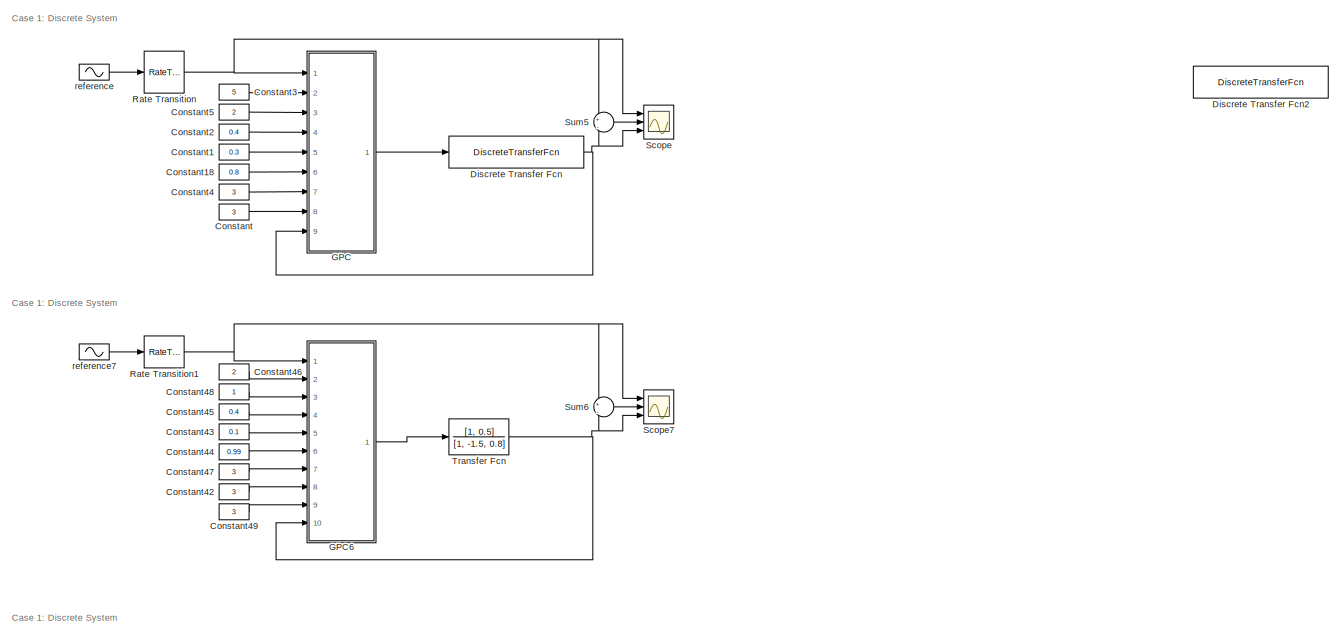
[diagram: root canvas - part 1/2, full width, top band]
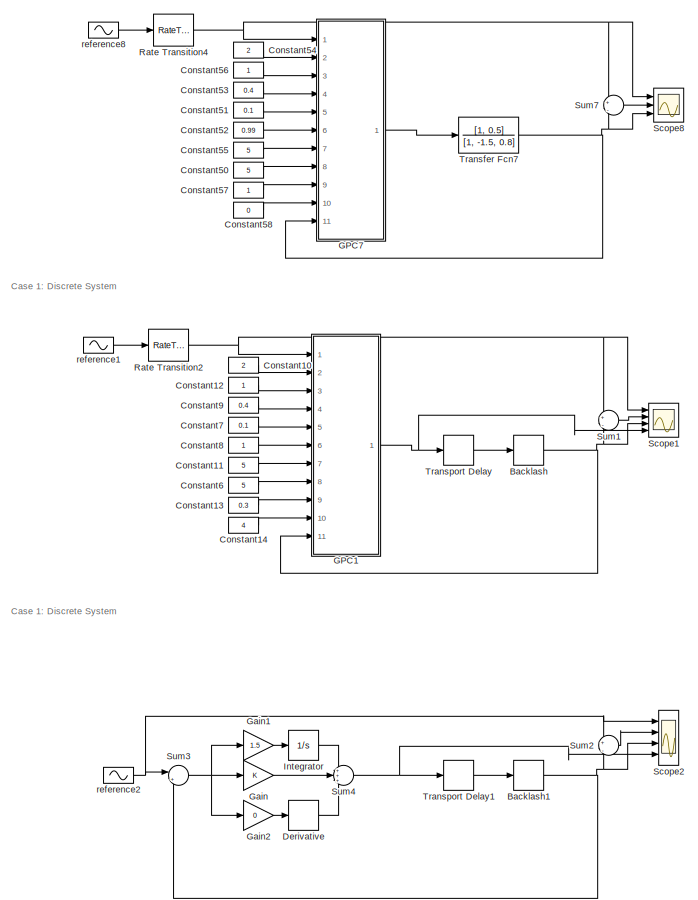
[diagram: root canvas - part 2/2, bottom left region]
MODEL slx_e017679d25f4
KIND model
CONFIG AbsTol = auto
CONFIG FixedStep = 0.2
CONFIG MaxStep = auto
CONFIG MinStep = auto
CONFIG RelTol = 1e-3
CONFIG SampleTimeConstraint = Unconstrained
CONFIG Solver = FixedStepAuto
CONFIG SolverMode = Auto
CONFIG SolverName = FixedStepAuto
CONFIG StartTime = 0.0
CONFIG StopTime = 100
BLOCK [Backlash] Backlash
  BacklashWidth = 1.5
  InputProcessing = Elements as channels (sample based)
BLOCK [Backlash] Backlash1
  InputProcessing = Elements as channels (sample based)
BLOCK [Constant] Constant
  Commented = on
  Value = 3
BLOCK [Constant] Constant1
  Commented = on
  Value = 0.3
BLOCK [Constant] Constant10
  Value = 2
BLOCK [Constant] Constant11
  Value = 5
BLOCK [Constant] Constant12
BLOCK [Constant] Constant13
  Value = 0.3
BLOCK [Constant] Constant14
  Value = 4
BLOCK [Constant] Constant18
  Commented = on
  Value = 0.8
BLOCK [Constant] Constant2
  Commented = on
  Value = 0.4
BLOCK [Constant] Constant3
  Commented = on
  Value = 5
BLOCK [Constant] Constant4
  Commented = on
  Value = 3
BLOCK [Constant] Constant42
  Commented = on
  Value = 3
BLOCK [Constant] Constant43
  Commented = on
  Value = 0.1
BLOCK [Constant] Constant44
  Commented = on
  Value = 0.99
BLOCK [Constant] Constant45
  Commented = on
  Value = 0.4
BLOCK [Constant] Constant46
  Commented = on
  Value = 2
BLOCK [Constant] Constant47
  Commented = on
  Value = 3
BLOCK [Constant] Constant48
  Commented = on
BLOCK [Constant] Constant49
  Commented = on
  Value = 3
BLOCK [Constant] Constant5
  Commented = on
  Value = 2
BLOCK [Constant] Constant50
  Commented = on
  Value = 5
BLOCK [Constant] Constant51
  Commented = on
  Value = 0.1
BLOCK [Constant] Constant52
  Commented = on
  Value = 0.99
BLOCK [Constant] Constant53
  Commented = on
  Value = 0.4
BLOCK [Constant] Constant54
  Commented = on
  Value = 2
BLOCK [Constant] Constant55
  Commented = on
  Value = 5
BLOCK [Constant] Constant56
  Commented = on
BLOCK [Constant] Constant57
  Commented = on
BLOCK [Constant] Constant58
  Commented = on
  Value = 0
BLOCK [Constant] Constant6
  Value = 5
BLOCK [Constant] Constant7
  Value = 0.1
BLOCK [Constant] Constant8
BLOCK [Constant] Constant9
  Value = 0.4
BLOCK [Derivative] Derivative
BLOCK [DiscreteTransferFcn] Discrete Transfer Fcn
  Commented = on
  Denominator = [1, 0.9, -0.2, 0.6, 0.3]
  InputPortMap = u0
  Numerator = [1.3, 1, 0.5]
  Ports = [1, 1]
BLOCK [DiscreteTransferFcn] Discrete Transfer Fcn2
  Denominator = [1, -1.5, 0.6]
  InputPortMap = u0
  Numerator = [1, 0.5]
  Ports = [1, 1]
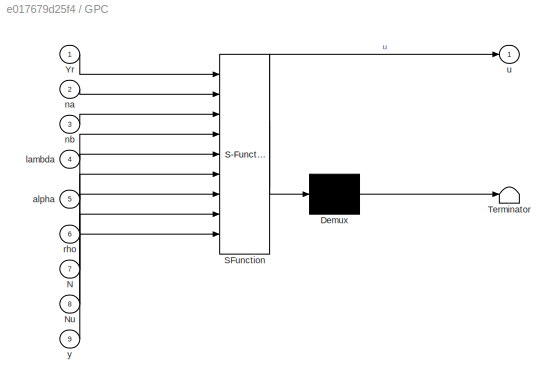
BLOCK [SubSystem] GPC
  Commented = on
  ErrorFcn = Stateflow.Translate.translate
  PermitHierarchicalResolution = ExplicitOnly
  Ports = [9, 1]
  RequestExecContextInheritance = off
  SFBlockType = MATLAB Function
  TreatAsAtomicUnit = on
  Variant = off
BLOCK [Demux] GPC/ Demux 
  Outputs = 1
  Ports = [1, 1]
BLOCK [S-Function] GPC/ SFunction 
  EnableBusSupport = on
  FunctionName = sf_sfun
  PortCounts = [9 2]
  Ports = [9, 2]
  SFunctionDeploymentMode = off
  Tag = Stateflow S-Function GPC_GUI 2
BLOCK [Terminator] GPC/ Terminator 
BLOCK [Inport] GPC/N
  IconDisplay = Port number
  Port = 7
BLOCK [Inport] GPC/Nu
  IconDisplay = Port number
  Port = 8
BLOCK [Inport] GPC/Yr
  IconDisplay = Port number
BLOCK [Inport] GPC/alpha
  IconDisplay = Port number
  Port = 5
BLOCK [Inport] GPC/lambda
  IconDisplay = Port number
  Port = 4
BLOCK [Inport] GPC/na
  IconDisplay = Port number
  Port = 2
BLOCK [Inport] GPC/nb
  IconDisplay = Port number
  Port = 3
BLOCK [Inport] GPC/rho
  IconDisplay = Port number
  Port = 6
BLOCK [Outport] GPC/u
  IconDisplay = Port number
BLOCK [Inport] GPC/y
  IconDisplay = Port number
  Port = 9
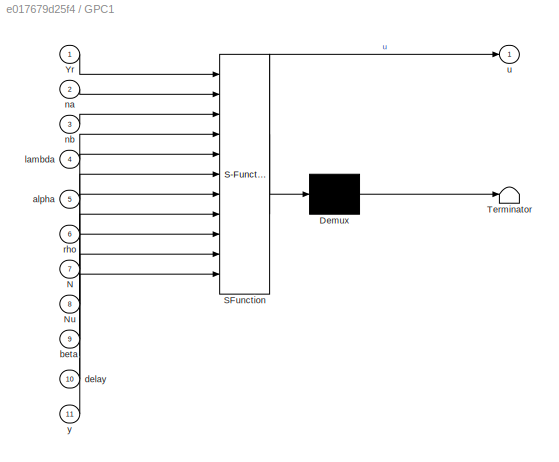
BLOCK [SubSystem] GPC1
  ErrorFcn = Stateflow.Translate.translate
  PermitHierarchicalResolution = ExplicitOnly
  Ports = [11, 1]
  RequestExecContextInheritance = off
  SFBlockType = MATLAB Function
  TreatAsAtomicUnit = on
  Variant = off
BLOCK [Demux] GPC1/ Demux 
  Outputs = 1
  Ports = [1, 1]
BLOCK [S-Function] GPC1/ SFunction 
  EnableBusSupport = on
  FunctionName = sf_sfun
  PortCounts = [11 2]
  Ports = [11, 2]
  SFunctionDeploymentMode = off
  Tag = Stateflow S-Function GPC_GUI 1
BLOCK [Terminator] GPC1/ Terminator 
BLOCK [Inport] GPC1/N
  IconDisplay = Port number
  Port = 7
BLOCK [Inport] GPC1/Nu
  IconDisplay = Port number
  Port = 8
BLOCK [Inport] GPC1/Yr
  IconDisplay = Port number
BLOCK [Inport] GPC1/alpha
  IconDisplay = Port number
  Port = 5
BLOCK [Inport] GPC1/beta
  IconDisplay = Port number
  Port = 9
BLOCK [Inport] GPC1/delay
  IconDisplay = Port number
  Port = 10
BLOCK [Inport] GPC1/lambda
  IconDisplay = Port number
  Port = 4
BLOCK [Inport] GPC1/na
  IconDisplay = Port number
  Port = 2
BLOCK [Inport] GPC1/nb
  IconDisplay = Port number
  Port = 3
BLOCK [Inport] GPC1/rho
  IconDisplay = Port number
  Port = 6
BLOCK [Outport] GPC1/u
  IconDisplay = Port number
BLOCK [Inport] GPC1/y
  IconDisplay = Port number
  Port = 11
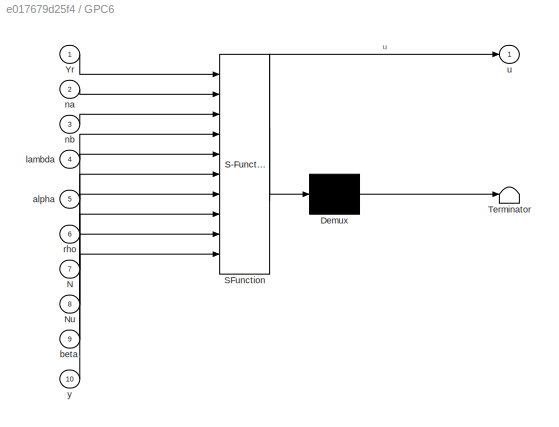
BLOCK [SubSystem] GPC6
  Commented = on
  ErrorFcn = Stateflow.Translate.translate
  PermitHierarchicalResolution = ExplicitOnly
  Ports = [10, 1]
  RequestExecContextInheritance = off
  SFBlockType = MATLAB Function
  TreatAsAtomicUnit = on
  Variant = off
BLOCK [Demux] GPC6/ Demux 
  Outputs = 1
  Ports = [1, 1]
BLOCK [S-Function] GPC6/ SFunction 
  EnableBusSupport = on
  FunctionName = sf_sfun
  PortCounts = [10 2]
  Ports = [10, 2]
  SFunctionDeploymentMode = off
  Tag = Stateflow S-Function GPC_GUI 7
BLOCK [Terminator] GPC6/ Terminator 
BLOCK [Inport] GPC6/N
  IconDisplay = Port number
  Port = 7
BLOCK [Inport] GPC6/Nu
  IconDisplay = Port number
  Port = 8
BLOCK [Inport] GPC6/Yr
  IconDisplay = Port number
BLOCK [Inport] GPC6/alpha
  IconDisplay = Port number
  Port = 5
BLOCK [Inport] GPC6/beta
  IconDisplay = Port number
  Port = 9
BLOCK [Inport] GPC6/lambda
  IconDisplay = Port number
  Port = 4
BLOCK [Inport] GPC6/na
  IconDisplay = Port number
  Port = 2
BLOCK [Inport] GPC6/nb
  IconDisplay = Port number
  Port = 3
BLOCK [Inport] GPC6/rho
  IconDisplay = Port number
  Port = 6
BLOCK [Outport] GPC6/u
  IconDisplay = Port number
BLOCK [Inport] GPC6/y
  IconDisplay = Port number
  Port = 10
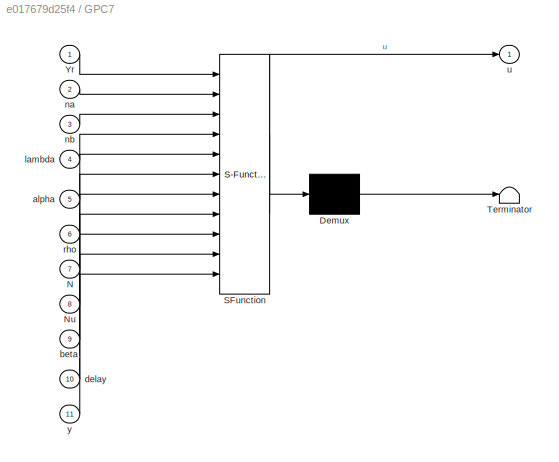
BLOCK [SubSystem] GPC7
  Commented = on
  ErrorFcn = Stateflow.Translate.translate
  PermitHierarchicalResolution = ExplicitOnly
  Ports = [11, 1]
  RequestExecContextInheritance = off
  SFBlockType = MATLAB Function
  TreatAsAtomicUnit = on
  Variant = off
BLOCK [Demux] GPC7/ Demux 
  Outputs = 1
  Ports = [1, 1]
BLOCK [S-Function] GPC7/ SFunction 
  EnableBusSupport = on
  FunctionName = sf_sfun
  PortCounts = [11 2]
  Ports = [11, 2]
  SFunctionDeploymentMode = off
  Tag = Stateflow S-Function GPC_GUI 8
BLOCK [Terminator] GPC7/ Terminator 
BLOCK [Inport] GPC7/N
  IconDisplay = Port number
  Port = 7
BLOCK [Inport] GPC7/Nu
  IconDisplay = Port number
  Port = 8
BLOCK [Inport] GPC7/Yr
  IconDisplay = Port number
BLOCK [Inport] GPC7/alpha
  IconDisplay = Port number
  Port = 5
BLOCK [Inport] GPC7/beta
  IconDisplay = Port number
  Port = 9
BLOCK [Inport] GPC7/delay
  IconDisplay = Port number
  Port = 10
BLOCK [Inport] GPC7/lambda
  IconDisplay = Port number
  Port = 4
BLOCK [Inport] GPC7/na
  IconDisplay = Port number
  Port = 2
BLOCK [Inport] GPC7/nb
  IconDisplay = Port number
  Port = 3
BLOCK [Inport] GPC7/rho
  IconDisplay = Port number
  Port = 6
BLOCK [Outport] GPC7/u
  IconDisplay = Port number
BLOCK [Inport] GPC7/y
  IconDisplay = Port number
  Port = 11
BLOCK [Gain] Gain
  OutDataTypeStr = Inherit: Inherit via internal rule
  ParamDataTypeStr = Inherit: Inherit via internal rule
  SaturateOnIntegerOverflow = off
BLOCK [Gain] Gain1
  Gain = 1.5
  OutDataTypeStr = Inherit: Inherit via internal rule
  ParamDataTypeStr = Inherit: Inherit via internal rule
  SaturateOnIntegerOverflow = off
BLOCK [Gain] Gain2
  Gain = 0
  OutDataTypeStr = Inherit: Inherit via internal rule
  ParamDataTypeStr = Inherit: Inherit via internal rule
  SaturateOnIntegerOverflow = off
BLOCK [Integrator] Integrator
  Ports = [1, 1]
BLOCK [RateTransition] Rate Transition
  Commented = on
BLOCK [RateTransition] Rate Transition1
  Commented = on
BLOCK [RateTransition] Rate Transition2
BLOCK [RateTransition] Rate Transition4
  Commented = on
BLOCK [Scope] Scope
  Commented = on
  NumInputPorts = 3
  Ports = [3]
  ScopeSpecificationString = Simulink.scopes.TimeScopeBlockCfg('CurrentConfiguration', extmgr.ConfigurationSet(extmgr.Configuration('Core','General UI',true),extmgr.Configuration('Core','Source UI',true),extmgr.Configuration('Sources','WiredSimulink',true,'DataLogging',true,'DataLoggingVariableName','dat1','DataLoggingSaveFormat','StructureWithTime'),extmgr.Configuration('Visuals','Time Domain',true,'SerializedDisplays',{stru...<+1535ch>
BLOCK [Scope] Scope1
  NumInputPorts = 4
  Ports = [4]
  ScopeSpecificationString = Simulink.scopes.TimeScopeBlockCfg('CurrentConfiguration', extmgr.ConfigurationSet(extmgr.Configuration('Core','General UI',true),extmgr.Configuration('Core','Source UI',true),extmgr.Configuration('Sources','WiredSimulink',true,'DataLogging',true,'DataLoggingVariableName','dat','DataLoggingSaveFormat','StructureWithTime'),extmgr.Configuration('Visuals','Time Domain',true,'SerializedDisplays',{struc...<+1559ch>
BLOCK [Scope] Scope2
  NumInputPorts = 4
  Ports = [4]
  ScopeSpecificationString = Simulink.scopes.TimeScopeBlockCfg('CurrentConfiguration', extmgr.ConfigurationSet(extmgr.Configuration('Core','General UI',true),extmgr.Configuration('Core','Source UI',true),extmgr.Configuration('Sources','WiredSimulink',true,'DataLogging',true,'DataLoggingVariableName','dat1','DataLoggingSaveFormat','StructureWithTime'),extmgr.Configuration('Visuals','Time Domain',true,'SerializedDisplays',{stru...<+1529ch>
BLOCK [Scope] Scope7
  Commented = on
  NumInputPorts = 3
  Ports = [3]
  ScopeSpecificationString = Simulink.scopes.TimeScopeBlockCfg('CurrentConfiguration', extmgr.ConfigurationSet(extmgr.Configuration('Core','General UI',true),extmgr.Configuration('Core','Source UI',true),extmgr.Configuration('Sources','WiredSimulink',true,'DataLoggingVariableName','ScopeData1','DataLoggingSaveFormat','StructureWithTime'),extmgr.Configuration('Visuals','Time Domain',true,'SerializedDisplays',{struct('MinYLimRe...<+1516ch>
BLOCK [Scope] Scope8
  Commented = on
  NumInputPorts = 3
  Ports = [3]
  ScopeSpecificationString = Simulink.scopes.TimeScopeBlockCfg('CurrentConfiguration', extmgr.ConfigurationSet(extmgr.Configuration('Core','General UI',true),extmgr.Configuration('Core','Source UI',true),extmgr.Configuration('Sources','WiredSimulink',true,'DataLogging',true,'DataLoggingVariableName','ScopeData1','DataLoggingSaveFormat','StructureWithTime'),extmgr.Configuration('Visuals','Time Domain',true,'SerializedDisplays'...<+1540ch>
BLOCK [Sum] Sum1
  IconShape = round
  InputSameDT = off
  Inputs = +|-
  OutDataTypeStr = Inherit: Inherit via internal rule
  Ports = [2, 1]
  SaturateOnIntegerOverflow = off
BLOCK [Sum] Sum2
  IconShape = round
  InputSameDT = off
  Inputs = +|-
  OutDataTypeStr = Inherit: Inherit via internal rule
  Ports = [2, 1]
  SaturateOnIntegerOverflow = off
BLOCK [Sum] Sum3
  IconShape = round
  InputSameDT = off
  Inputs = |+-
  OutDataTypeStr = Inherit: Inherit via internal rule
  Ports = [2, 1]
  SaturateOnIntegerOverflow = off
BLOCK [Sum] Sum4
  IconShape = round
  InputSameDT = off
  Inputs = +++
  OutDataTypeStr = Inherit: Inherit via internal rule
  Ports = [3, 1]
  SaturateOnIntegerOverflow = off
BLOCK [Sum] Sum5
  Commented = on
  IconShape = round
  InputSameDT = off
  Inputs = +|-
  OutDataTypeStr = Inherit: Inherit via internal rule
  Ports = [2, 1]
  SaturateOnIntegerOverflow = off
BLOCK [Sum] Sum6
  Commented = on
  IconShape = round
  InputSameDT = off
  Inputs = +|-
  OutDataTypeStr = Inherit: Inherit via internal rule
  Ports = [2, 1]
  SaturateOnIntegerOverflow = off
BLOCK [Sum] Sum7
  Commented = on
  IconShape = round
  InputSameDT = off
  Inputs = +|-
  OutDataTypeStr = Inherit: Inherit via internal rule
  Ports = [2, 1]
  SaturateOnIntegerOverflow = off
BLOCK [TransferFcn] Transfer Fcn
  Commented = on
  Denominator = [1, -1.5, 0.8]
  Numerator = [1, 0.5]
BLOCK [TransferFcn] Transfer Fcn7
  Commented = on
  Denominator = [1, -1.5, 0.8]
  Numerator = [1, 0.5]
BLOCK [TransportDelay] Transport Delay
  DelayTime = 0.6
  Ports = [1, 1]
BLOCK [TransportDelay] Transport Delay1
  DelayTime = 0.6
  Ports = [1, 1]
BLOCK [Sin] reference
  Commented = on
  Frequency = 0.2
  Phase = pi/4
  Ports = [0, 1]
  SampleTime = 0
BLOCK [Sin] reference1
  Amplitude = 10
  Frequency = 0.5
  Phase = pi/4
  Ports = [0, 1]
  SampleTime = 0
BLOCK [Sin] reference2
  Amplitude = 10
  Frequency = 0.5
  Phase = pi/4
  Ports = [0, 1]
  SampleTime = 0
BLOCK [Sin] reference7
  Amplitude = 10
  Commented = on
  Frequency = 0.5
  Phase = pi/4
  Ports = [0, 1]
  SampleTime = 0
BLOCK [Sin] reference8
  Amplitude = 10
  Commented = on
  Frequency = 0.5
  Phase = pi/4
  Ports = [0, 1]
  SampleTime = 0
ANNOTATION (root): Case 1: Discrete System
NET Backlash1:1 -> Scope2:3, Sum2:2, Sum3:2
NET Backlash:1 -> GPC1:11, Scope1:3, Sum1:2
LINE Constant10:1 -> GPC1:2
LINE Constant11:1 -> GPC1:7
LINE Constant12:1 -> GPC1:3
LINE Constant13:1 -> GPC1:9
LINE Constant14:1 -> GPC1:10
LINE Constant18:1 -> GPC:6
LINE Constant1:1 -> GPC:5
LINE Constant2:1 -> GPC:4
LINE Constant3:1 -> GPC:2
LINE Constant42:1 -> GPC6:8
LINE Constant43:1 -> GPC6:5
LINE Constant44:1 -> GPC6:6
LINE Constant45:1 -> GPC6:4
LINE Constant46:1 -> GPC6:2
LINE Constant47:1 -> GPC6:7
LINE Constant48:1 -> GPC6:3
LINE Constant49:1 -> GPC6:9
LINE Constant4:1 -> GPC:7
LINE Constant50:1 -> GPC7:8
LINE Constant51:1 -> GPC7:5
LINE Constant52:1 -> GPC7:6
LINE Constant53:1 -> GPC7:4
LINE Constant54:1 -> GPC7:2
LINE Constant55:1 -> GPC7:7
LINE Constant56:1 -> GPC7:3
LINE Constant57:1 -> GPC7:9
LINE Constant58:1 -> GPC7:10
LINE Constant5:1 -> GPC:3
LINE Constant6:1 -> GPC1:8
LINE Constant7:1 -> GPC1:5
LINE Constant8:1 -> GPC1:6
LINE Constant9:1 -> GPC1:4
LINE Constant:1 -> GPC:8
LINE Derivative:1 -> Sum4:3
NET Discrete Transfer Fcn:1 -> GPC:9, Scope:3, Sum5:2
NET GPC1:1 -> Scope1:4, Transport Delay:1
LINE GPC6:1 -> Transfer Fcn:1
LINE GPC7:1 -> Transfer Fcn7:1
LINE GPC:1 -> Discrete Transfer Fcn:1
LINE Gain1:1 -> Integrator:1
LINE Gain2:1 -> Derivative:1
LINE Gain:1 -> Sum4:2
LINE Integrator:1 -> Sum4:1
NET Rate Transition1:1 -> GPC6:1, Scope7:1, Sum6:1
NET Rate Transition2:1 -> GPC1:1, Scope1:1, Sum1:1
NET Rate Transition4:1 -> GPC7:1, Scope8:1, Sum7:1
NET Rate Transition:1 -> GPC:1, Scope:1, Sum5:1
LINE Sum1:1 -> Scope1:2
LINE Sum2:1 -> Scope2:2
NET Sum3:1 -> Gain1:1, Gain2:1, Gain:1
NET Sum4:1 -> Scope2:4, Transport Delay1:1
LINE Sum5:1 -> Scope:2
LINE Sum6:1 -> Scope7:2
LINE Sum7:1 -> Scope8:2
NET Transfer Fcn7:1 -> GPC7:11, Scope8:3, Sum7:2
NET Transfer Fcn:1 -> GPC6:10, Scope7:3, Sum6:2
LINE Transport Delay1:1 -> Backlash1:1
LINE Transport Delay:1 -> Backlash:1
LINE reference1:1 -> Rate Transition2:1
NET reference2:1 -> Scope2:1, Sum2:1, Sum3:1
LINE reference7:1 -> Rate Transition1:1
LINE reference8:1 -> Rate Transition4:1
LINE reference:1 -> Rate Transition:1
note: NET lines group one-source signal fan-out (src -> all destinations, sorted); 1:1 wires keep LINE
CHART GPC1 states=1 transitions=1
  STATE_LABEL 'eML_blk_kernel()'
  STATE_LABEL 'SCRIPT:\nfunction u   = fcn(Yr, na, nb, lambda, alpha, rho, N, Nu, beta, delay, y)\n    persistent hatU Y hatA hatB theta P;\n\tna  = int8(na);\n\tnb  = int8(nb);\n    N   = int8(N);\n    delay = int8(delay);\n    Nu  = int8(Nu);\n    if isempty(hatU)\n        Y     = zeros(na + 1, 1);\n        P     = 100 * eye(na + nb + 1);\n        theta = cumprod(0.7*ones(na + nb + 1, 1));\n        hatU  = zeros(nb + 2, 1);...<+2467ch>'
CHART GPC states=1 transitions=1
  STATE_LABEL 'eML_blk_kernel()'
  STATE_LABEL 'SCRIPT:\nfunction u  = fcn(Yr, na, nb, lambda, alpha, rho, N, Nu, y)\n    persistent hatU Y hatA hatB theta P;\n\tna  = int8(na);\n\tnb  = int8(nb);\n    N   = int8(N);\n    Nu  = int8(Nu);\n    if isempty(hatU)\n        Y     = zeros(na + 1, 1);\n        P     = 100 * eye(na + nb + 1);\n        theta = cumprod(0.7*ones(na + nb + 1, 1));\n        hatU  = zeros(nb + 2, 1);\n    end\n\n    Phi = flipud([diff(hatU);...<+1805ch>'
CHART GPC6 states=1 transitions=1
  STATE_LABEL 'eML_blk_kernel()'
  STATE_LABEL 'SCRIPT:\nfunction u   = fcn(Yr, na, nb, lambda, alpha, rho, N, Nu, beta, y)\n    persistent hatU Y hatA hatB theta P;\n\tna  = int8(na);\n\tnb  = int8(nb);\n    N   = int8(N);\n    Nu  = int8(Nu);\n    if isempty(hatU)\n        Y     = zeros(na + 1, 1);\n        P     = 100 * eye(na + nb + 1);\n        theta = cumprod(0.7*ones(na + nb + 1, 1));\n        hatU  = zeros(nb + 2, 1);\n    end\n\n\t%    |y(k)    |      ...<+2336ch>'
CHART GPC7 states=1 transitions=1
  STATE_LABEL 'eML_blk_kernel()'
  STATE_LABEL 'SCRIPT:\nfunction u   = fcn(Yr, na, nb, lambda, alpha, rho, N, Nu, beta, delay, y)\n    persistent hatU Y hatA hatB theta P;\n\tna  = int8(na);\n\tnb  = int8(nb);\n    N   = int8(N);\n    delay = int8(delay);\n    Nu  = int8(Nu);\n    if isempty(hatU)\n        Y     = zeros(na + 1, 1);\n        P     = 100 * eye(na + nb + 1);\n        theta = cumprod(0.7*ones(na + nb + 1, 1));\n        hatU  = zeros(nb + 2, 1);...<+2467ch>'
